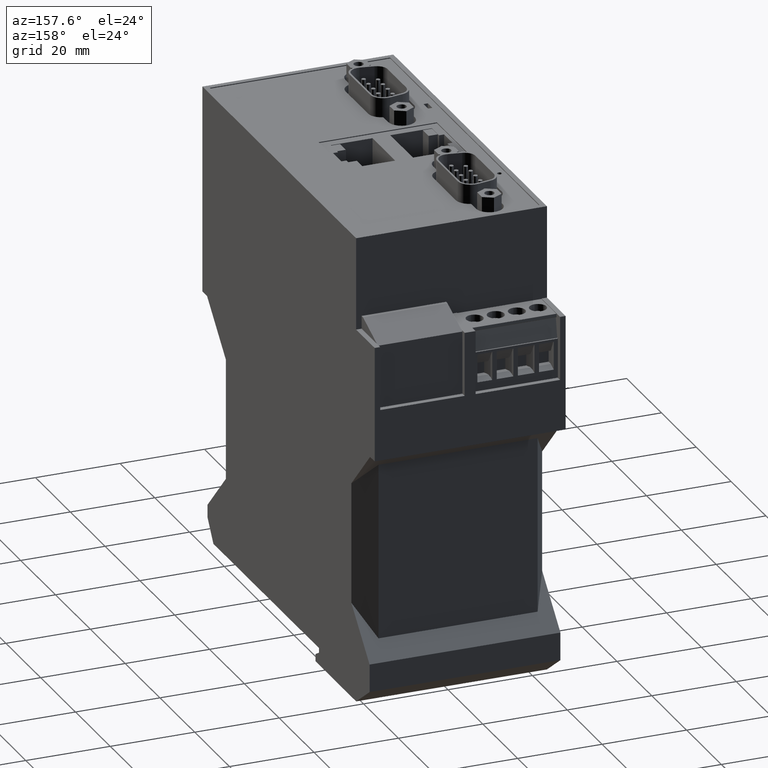
[diagram: clean part render]
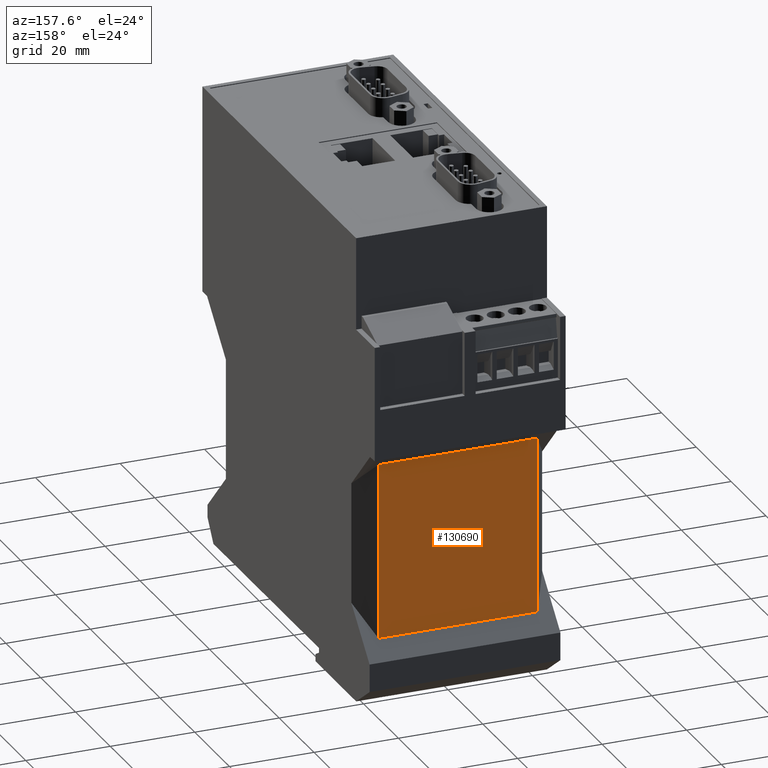
[diagram: same view with one face highlighted and labeled with its STEP entity id]
A machine part, auxiliary view. The second image highlights one B-rep face of the part: STEP entity #130690.
In plain terms, the highlighted planar face has unit normal (0, -1, -0).
Its self-contained STEP definition (entity closure, byte-faithful):
#126860=CARTESIAN_POINT('',(25.0500000000871,53.599999999998,
-7.54722325026923));
#126870=VERTEX_POINT('',#126860);
#126900=CARTESIAN_POINT('',(25.0500000000854,53.5999999999963,-11.3));
#126910=DIRECTION('',(4.52799999999997E-13,4.52799999999993E-13,1.));
#126920=VECTOR('',#126910,1.);
#126930=LINE('',#126900,#126920);
#126940=CARTESIAN_POINT('',(25.0500000000939,53.6000000000048,
30.1472232502124));
#126950=VERTEX_POINT('',#126940);
#126960=EDGE_CURVE('',#126870,#126950,#126930,.T.);
#127220=CARTESIAN_POINT('',(25.0500000000941,24.,30.1472232502123));
#127230=DIRECTION('',(-6.59999999999827E-15,1.,3.81051177665051E-15));
#127240=VECTOR('',#127230,1.);
#127250=LINE('',#127220,#127240);
#127260=CARTESIAN_POINT('',(25.0500000000942,11.9999999999957,
30.1472232502123));
#127270=VERTEX_POINT('',#127260);
#127280=EDGE_CURVE('',#127270,#126950,#127250,.T.);
#127560=CARTESIAN_POINT('',(25.0500000000874,12.0000000000026,
-7.54722325026897));
#127570=VERTEX_POINT('',#127560);
#127690=CARTESIAN_POINT('',(25.0500000000857,12.0000000000043,-11.3));
#127700=DIRECTION('',(-4.52800000000003E-13,4.52799999999919E-13,-1.));
#127710=VECTOR('',#127700,1.);
#127720=LINE('',#127690,#127710);
#127730=EDGE_CURVE('',#127270,#127570,#127720,.T.);
#130400=CARTESIAN_POINT('',(25.0500000000873,24.,-7.54722325026905));
#130410=DIRECTION('',(-6.60000000000277E-15,1.,-6.11991285341162E-15));
#130420=VECTOR('',#130410,1.);
#130430=LINE('',#130400,#130420);
#130440=EDGE_CURVE('',#127570,#126870,#130430,.T.);
#130580=CARTESIAN_POINT('',(25.0500000000904,68.5000000000004,
-1.90176763226191E-11));
#130590=DIRECTION('',(-1.,-6.6E-15,4.528E-13));
#130600=DIRECTION('',(4.528E-13,0.,1.));
#130610=AXIS2_PLACEMENT_3D('',#130580,#130590,#130600);
#130620=PLANE('',#130610);
#130630=ORIENTED_EDGE('',*,*,#130440,.T.);
#130640=ORIENTED_EDGE('',*,*,#127730,.T.);
#130650=ORIENTED_EDGE('',*,*,#127280,.F.);
#130660=ORIENTED_EDGE('',*,*,#126960,.T.);
#130670=EDGE_LOOP('',(#130660,#130650,#130640,#130630));
#130680=FACE_OUTER_BOUND('',#130670,.T.);
#130690=ADVANCED_FACE('',(#130680),#130620,.F.);